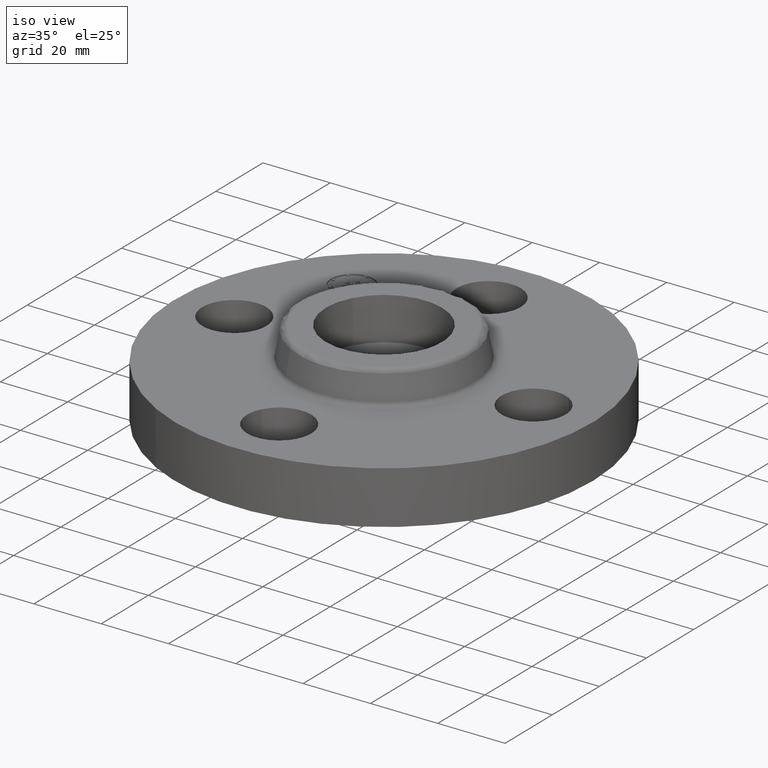
[diagram: clean part render]
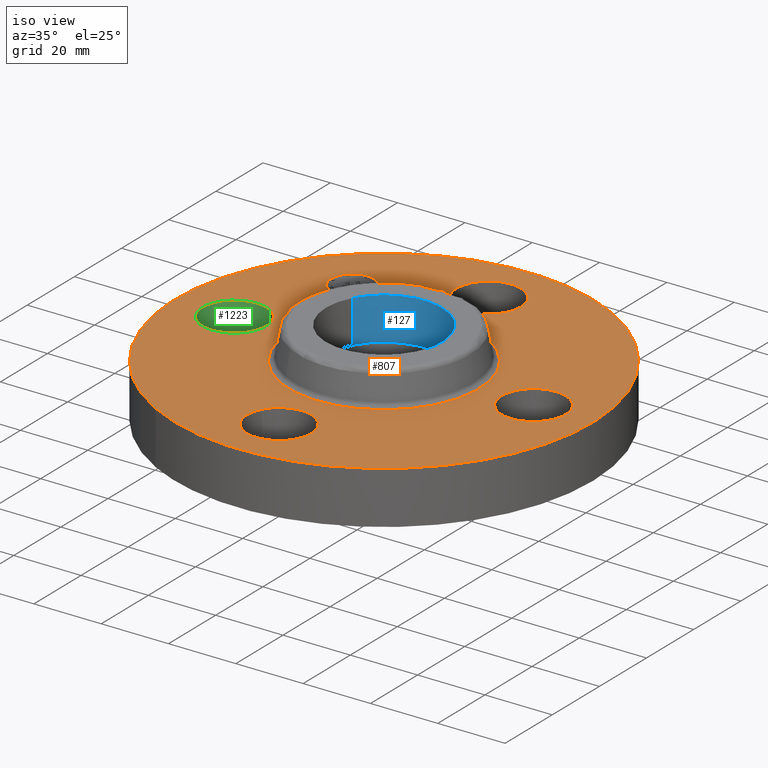
[diagram: same view with three faces highlighted in distinct colors, each labeled with its STEP entity id]
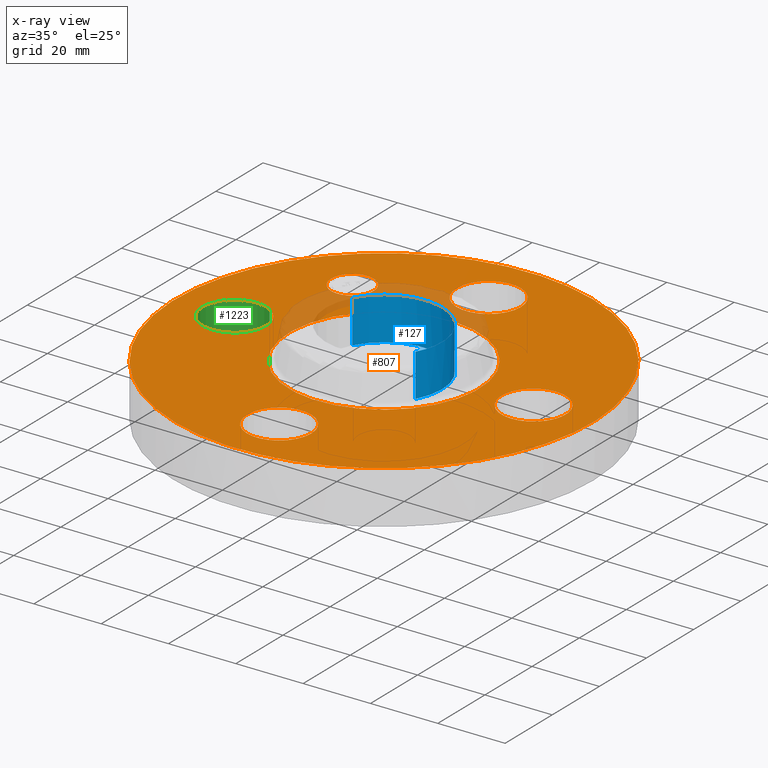
[diagram: x-ray of the same camera — body ghosted, the three highlighted faces saturated]
A machine part, iso view with three faces highlighted in distinct colors.
The next image is the same camera in x-ray (body ghosted, the three faces saturated) — at least one of them is partly hidden behind the body in this view.
Their STEP definitions:

[orange] entity #807 — the highlighted planar face has unit normal (0, 0, -1).
#558=AXIS2_PLACEMENT_3D('Circle Axis2P3D',#556,#557,$) ;
#596=AXIS2_PLACEMENT_3D('Circle Axis2P3D',#594,#595,$) ;
#693=AXIS2_PLACEMENT_3D('Plane Axis2P3D',#690,#691,#692) ;
#697=AXIS2_PLACEMENT_3D('Circle Axis2P3D',#695,#696,$) ;
#706=AXIS2_PLACEMENT_3D('Circle Axis2P3D',#704,#705,$) ;
#715=AXIS2_PLACEMENT_3D('Circle Axis2P3D',#713,#714,$) ;
#724=AXIS2_PLACEMENT_3D('Circle Axis2P3D',#722,#723,$) ;
#737=AXIS2_PLACEMENT_3D('Circle Axis2P3D',#735,#736,$) ;
#746=AXIS2_PLACEMENT_3D('Circle Axis2P3D',#744,#745,$) ;
#755=AXIS2_PLACEMENT_3D('Circle Axis2P3D',#753,#754,$) ;
#764=AXIS2_PLACEMENT_3D('Circle Axis2P3D',#762,#763,$) ;
#773=AXIS2_PLACEMENT_3D('Circle Axis2P3D',#771,#772,$) ;
#782=AXIS2_PLACEMENT_3D('Circle Axis2P3D',#780,#781,$) ;
#791=AXIS2_PLACEMENT_3D('Circle Axis2P3D',#789,#790,$) ;
#800=AXIS2_PLACEMENT_3D('Circle Axis2P3D',#798,#799,$) ;
#556=CARTESIAN_POINT('Axis2P3D Location',(0.,0.,0.620000000003)) ;
#560=CARTESIAN_POINT('Vertex',(0.53232821848,0.974420267848,0.620000000003)) ;
#562=CARTESIAN_POINT('Vertex',(-0.532328218482,-0.974420267852,0.620000000003)) ;
#594=CARTESIAN_POINT('Axis2P3D Location',(0.,0.,0.620000000003)) ;
#690=CARTESIAN_POINT('Axis2P3D Location',(0.,2.44000000001,0.620000000002)) ;
#695=CARTESIAN_POINT('Axis2P3D Location',(8.39223703654E-016,1.82136720404E-011,0.620000000002)) ;
#699=CARTESIAN_POINT('Vertex',(1.1697983142,2.14130145102,0.619999999973)) ;
#701=CARTESIAN_POINT('Vertex',(-1.1697983142,-2.14130145102,0.619999999973)) ;
#704=CARTESIAN_POINT('Axis2P3D Location',(-8.39223703654E-016,1.82131125579E-011,0.620000000002)) ;
#713=CARTESIAN_POINT('Axis2P3D Location',(-1.74838271595E-017,1.74999999999,0.620000000002)) ;
#717=CARTESIAN_POINT('Vertex',(-0.32909346071,1.92978457699,0.619999999987)) ;
#719=CARTESIAN_POINT('Vertex',(0.329093460698,1.57021542302,0.620000000002)) ;
#722=CARTESIAN_POINT('Axis2P3D Location',(1.74838271595E-017,1.74999999999,0.620000000002)) ;
#735=CARTESIAN_POINT('Axis2P3D Location',(1.74999999999,2.52125179876E-011,0.620000000002)) ;
#739=CARTESIAN_POINT('Vertex',(1.570215423,-0.329093460679,0.620000000002)) ;
#741=CARTESIAN_POINT('Vertex',(1.92978457699,0.32909346071,0.619999999987)) ;
#744=CARTESIAN_POINT('Axis2P3D Location',(1.75000000002,1.12142666107E-011,0.620000000002)) ;
#753=CARTESIAN_POINT('Axis2P3D Location',(-1.74838271595E-017,-1.75000000003,0.620000000002)) ;
#757=CARTESIAN_POINT('Vertex',(-0.329093460698,-1.57021542305,0.620000000002)) ;
#759=CARTESIAN_POINT('Vertex',(0.32909346071,-1.92978457699,0.619999999987)) ;
#762=CARTESIAN_POINT('Axis2P3D Location',(1.74838271595E-017,-1.75000000003,0.620000000002)) ;
#771=CARTESIAN_POINT('Axis2P3D Location',(-1.74999999999,1.12142666107E-011,0.620000000002)) ;
#775=CARTESIAN_POINT('Vertex',(-1.570215423,0.329093460716,0.620000000002)) ;
#777=CARTESIAN_POINT('Vertex',(-1.92978457699,-0.32909346071,0.619999999987)) ;
#780=CARTESIAN_POINT('Axis2P3D Location',(-1.75000000002,2.52125179876E-011,0.620000000002)) ;
#789=CARTESIAN_POINT('Axis2P3D Location',(-1.23743686708,1.23743686702,0.620000000002)) ;
#793=CARTESIAN_POINT('Vertex',(-1.41244579547,1.06242793871,0.620000000002)) ;
#795=CARTESIAN_POINT('Vertex',(-1.06242793876,1.41244579541,0.620000000002)) ;
#798=CARTESIAN_POINT('Axis2P3D Location',(-1.23743686711,1.23743686706,0.620000000002)) ;
#557=DIRECTION('Axis2P3D Direction',(-0.,0.,-0.0393700787402)) ;
#595=DIRECTION('Axis2P3D Direction',(-0.,0.,-0.0393700787402)) ;
#691=DIRECTION('Axis2P3D Direction',(0.,0.,-0.0393700787402)) ;
#692=DIRECTION('Axis2P3D XDirection',(0.0393700787402,0.,0.)) ;
#696=DIRECTION('Axis2P3D Direction',(0.,0.,-0.0393700787402)) ;
#705=DIRECTION('Axis2P3D Direction',(0.,0.,-0.0393700787402)) ;
#714=DIRECTION('Axis2P3D Direction',(0.,0.,-0.0393700787402)) ;
#723=DIRECTION('Axis2P3D Direction',(0.,0.,-0.0393700787402)) ;
#736=DIRECTION('Axis2P3D Direction',(0.,0.,-0.0393700787402)) ;
#745=DIRECTION('Axis2P3D Direction',(0.,0.,-0.0393700787402)) ;
#754=DIRECTION('Axis2P3D Direction',(0.,0.,-0.0393700787402)) ;
#763=DIRECTION('Axis2P3D Direction',(0.,0.,-0.0393700787402)) ;
#772=DIRECTION('Axis2P3D Direction',(0.,0.,-0.0393700787402)) ;
#781=DIRECTION('Axis2P3D Direction',(0.,0.,-0.0393700787402)) ;
#790=DIRECTION('Axis2P3D Direction',(0.,0.,-0.0393700787402)) ;
#799=DIRECTION('Axis2P3D Direction',(0.,0.,-0.0393700787402)) ;
#710=ORIENTED_EDGE('',*,*,#703,.F.) ;
#711=ORIENTED_EDGE('',*,*,#708,.F.) ;
#728=ORIENTED_EDGE('',*,*,#721,.T.) ;
#729=ORIENTED_EDGE('',*,*,#726,.T.) ;
#732=ORIENTED_EDGE('',*,*,#598,.T.) ;
#733=ORIENTED_EDGE('',*,*,#564,.T.) ;
#750=ORIENTED_EDGE('',*,*,#743,.T.) ;
#751=ORIENTED_EDGE('',*,*,#748,.T.) ;
#768=ORIENTED_EDGE('',*,*,#761,.T.) ;
#769=ORIENTED_EDGE('',*,*,#766,.T.) ;
#786=ORIENTED_EDGE('',*,*,#779,.T.) ;
#787=ORIENTED_EDGE('',*,*,#784,.T.) ;
#804=ORIENTED_EDGE('',*,*,#797,.T.) ;
#805=ORIENTED_EDGE('',*,*,#802,.T.) ;
#730=FACE_BOUND('',#727,.T.) ;
#734=FACE_BOUND('',#731,.T.) ;
#752=FACE_BOUND('',#749,.T.) ;
#770=FACE_BOUND('',#767,.T.) ;
#788=FACE_BOUND('',#785,.T.) ;
#806=FACE_BOUND('',#803,.T.) ;
#807=ADVANCED_FACE('PartBody',(#712,#730,#734,#752,#770,#788,#806),#694,.F.) ;
#559=CIRCLE('generated circle',#558,1.11034597788) ;
#597=CIRCLE('generated circle',#596,1.11034597788) ;
#698=CIRCLE('generated circle',#697,2.44) ;
#707=CIRCLE('generated circle',#706,2.44) ;
#716=CIRCLE('generated circle',#715,0.374999999988) ;
#725=CIRCLE('generated circle',#724,0.374999999988) ;
#738=CIRCLE('generated circle',#737,0.375000000006) ;
#747=CIRCLE('generated circle',#746,0.375000000006) ;
#756=CIRCLE('generated circle',#755,0.374999999988) ;
#765=CIRCLE('generated circle',#764,0.374999999988) ;
#774=CIRCLE('generated circle',#773,0.375000000006) ;
#783=CIRCLE('generated circle',#782,0.375000000006) ;
#792=CIRCLE('generated circle',#791,0.247500000012) ;
#801=CIRCLE('generated circle',#800,0.247500000012) ;
#564=EDGE_CURVE('',#561,#563,#559,.T.) ;
#598=EDGE_CURVE('',#563,#561,#597,.T.) ;
#703=EDGE_CURVE('',#700,#702,#698,.T.) ;
#708=EDGE_CURVE('',#702,#700,#707,.T.) ;
#721=EDGE_CURVE('',#718,#720,#716,.T.) ;
#726=EDGE_CURVE('',#720,#718,#725,.T.) ;
#743=EDGE_CURVE('',#740,#742,#738,.T.) ;
#748=EDGE_CURVE('',#742,#740,#747,.T.) ;
#761=EDGE_CURVE('',#758,#760,#756,.T.) ;
#766=EDGE_CURVE('',#760,#758,#765,.T.) ;
#779=EDGE_CURVE('',#776,#778,#774,.T.) ;
#784=EDGE_CURVE('',#778,#776,#783,.T.) ;
#797=EDGE_CURVE('',#794,#796,#792,.T.) ;
#802=EDGE_CURVE('',#796,#794,#801,.T.) ;
#709=EDGE_LOOP('',(#710,#711)) ;
#727=EDGE_LOOP('',(#728,#729)) ;
#731=EDGE_LOOP('',(#732,#733)) ;
#749=EDGE_LOOP('',(#750,#751)) ;
#767=EDGE_LOOP('',(#768,#769)) ;
#785=EDGE_LOOP('',(#786,#787)) ;
#803=EDGE_LOOP('',(#804,#805)) ;
#712=FACE_OUTER_BOUND('',#709,.T.) ;
#694=PLANE('',#693) ;
#561=VERTEX_POINT('',#560) ;
#563=VERTEX_POINT('',#562) ;
#700=VERTEX_POINT('',#699) ;
#702=VERTEX_POINT('',#701) ;
#718=VERTEX_POINT('',#717) ;
#720=VERTEX_POINT('',#719) ;
#740=VERTEX_POINT('',#739) ;
#742=VERTEX_POINT('',#741) ;
#758=VERTEX_POINT('',#757) ;
#760=VERTEX_POINT('',#759) ;
#776=VERTEX_POINT('',#775) ;
#778=VERTEX_POINT('',#777) ;
#794=VERTEX_POINT('',#793) ;
#796=VERTEX_POINT('',#795) ;

[blue] entity #127 — the highlighted cylindrical surface (partial cylindrical patch) has radius 17.272 mm, axis along (0, 0, -1).
#42=AXIS2_PLACEMENT_3D('Circle Axis2P3D',#40,#41,$) ;
#88=AXIS2_PLACEMENT_3D('Cylinder Axis2P3D',#85,#86,#87) ;
#40=CARTESIAN_POINT('Axis2P3D Location',(1.74838271595E-016,-4.19611851826E-016,0.500000000002)) ;
#44=CARTESIAN_POINT('Vertex',(-0.596756142102,0.326009366265,0.500000000002)) ;
#46=CARTESIAN_POINT('Vertex',(0.596756142102,-0.326009366265,0.500000000002)) ;
#85=CARTESIAN_POINT('Axis2P3D Location',(1.04902962957E-016,-2.09805925913E-016,0.99606299213)) ;
#91=CARTESIAN_POINT('Control Point',(-0.596756142088,0.326009366253,1.)) ;
#92=CARTESIAN_POINT('Control Point',(-0.545546710587,0.419747601851,0.999999999999)) ;
#93=CARTESIAN_POINT('Control Point',(-0.475931819566,0.503430889087,0.999999999999)) ;
#94=CARTESIAN_POINT('Control Point',(-0.390529134758,0.572224389438,0.999999999998)) ;
#95=CARTESIAN_POINT('Control Point',(-0.197351584244,0.672618295801,0.999999999997)) ;
#96=CARTESIAN_POINT('Control Point',(0.0194447785343,0.69251401253,0.999999999996)) ;
#97=CARTESIAN_POINT('Control Point',(0.128477946693,0.68076954557,0.999999999996)) ;
#98=CARTESIAN_POINT('Control Point',(0.336064314615,0.615161601608,0.999999999995)) ;
#99=CARTESIAN_POINT('Control Point',(0.503430889087,0.475931819566,0.999999999994)) ;
#100=CARTESIAN_POINT('Control Point',(0.572224389438,0.390529134758,0.999999999993)) ;
#101=CARTESIAN_POINT('Control Point',(0.672618295801,0.197351584244,0.999999999992)) ;
#102=CARTESIAN_POINT('Control Point',(0.69251401253,-0.0194447785341,0.999999999991)) ;
#103=CARTESIAN_POINT('Control Point',(0.68076954557,-0.128477946693,0.99999999999)) ;
#104=CARTESIAN_POINT('Control Point',(0.647965573589,-0.232271130654,0.99999999999)) ;
#105=CARTESIAN_POINT('Control Point',(0.596756142088,-0.326009366252,0.999999999989)) ;
#106=CARTESIAN_POINT('Vertex',(-0.596756142102,0.326009366287,1.)) ;
#108=CARTESIAN_POINT('Vertex',(0.596756142102,-0.326009366244,1.)) ;
#111=CARTESIAN_POINT('Line Origine',(-0.596756142088,0.326009366253,0.750000000001)) ;
#116=CARTESIAN_POINT('Line Origine',(0.596756142088,-0.326009366253,0.750000000001)) ;
#41=DIRECTION('Axis2P3D Direction',(0.,0.,-0.0393700787402)) ;
#86=DIRECTION('Axis2P3D Direction',(0.,0.,-0.0393700787402)) ;
#87=DIRECTION('Axis2P3D XDirection',(-0.0345504945626,0.0188750212049,-0.)) ;
#112=DIRECTION('Vector Direction',(0.,0.,-0.0393700787402)) ;
#117=DIRECTION('Vector Direction',(0.,0.,-0.0393700787402)) ;
#113=VECTOR('Line Direction',#112,0.0393700787402) ;
#118=VECTOR('Line Direction',#117,0.0393700787402) ;
#122=ORIENTED_EDGE('',*,*,#110,.F.) ;
#123=ORIENTED_EDGE('',*,*,#115,.F.) ;
#124=ORIENTED_EDGE('',*,*,#48,.T.) ;
#125=ORIENTED_EDGE('',*,*,#120,.T.) ;
#127=ADVANCED_FACE('PartBody',(#126),#89,.F.) ;
#90=B_SPLINE_CURVE_WITH_KNOTS('',5,(#91,#92,#93,#94,#95,#96,#97,#98,#99,#100,#101,#102,#103,#104,#105),.UNSPECIFIED.,.F.,.U.,(6,3,3,3,6),(-27.1307941565,-13.5653970783,-1.7763568394E-015,13.5653970783,27.1307941565),.UNSPECIFIED.) ;
#43=CIRCLE('generated circle',#42,0.680000000022) ;
#89=CYLINDRICAL_SURFACE('generated cylinder',#88,0.680000000003) ;
#48=EDGE_CURVE('',#45,#47,#43,.T.) ;
#110=EDGE_CURVE('',#107,#109,#90,.T.) ;
#115=EDGE_CURVE('',#45,#107,#114,.F.) ;
#120=EDGE_CURVE('',#47,#109,#119,.F.) ;
#121=EDGE_LOOP('',(#122,#123,#124,#125)) ;
#126=FACE_OUTER_BOUND('',#121,.T.) ;
#114=LINE('Line',#111,#113) ;
#119=LINE('Line',#116,#118) ;
#45=VERTEX_POINT('',#44) ;
#47=VERTEX_POINT('',#46) ;
#107=VERTEX_POINT('',#106) ;
#109=VERTEX_POINT('',#108) ;

[green] entity #1223 — the highlighted cylindrical surface (partial cylindrical patch) has radius 9.525 mm, axis along (0, 0, -1).
#782=AXIS2_PLACEMENT_3D('Circle Axis2P3D',#780,#781,$) ;
#1210=AXIS2_PLACEMENT_3D('Cylinder Axis2P3D',#1207,#1208,#1209) ;
#1214=AXIS2_PLACEMENT_3D('Circle Axis2P3D',#1212,#1213,$) ;
#775=CARTESIAN_POINT('Vertex',(-1.570215423,0.329093460716,0.620000000002)) ;
#777=CARTESIAN_POINT('Vertex',(-1.92978457699,-0.32909346071,0.619999999987)) ;
#780=CARTESIAN_POINT('Axis2P3D Location',(-1.75000000002,2.52125179876E-011,0.620000000002)) ;
#1166=CARTESIAN_POINT('Line Origine',(-1.57021542303,0.32909346071,0.309999999994)) ;
#1170=CARTESIAN_POINT('Vertex',(-1.570215423,0.329093460678,0.)) ;
#1184=CARTESIAN_POINT('Vertex',(-1.92978457702,-0.329093460717,0.)) ;
#1187=CARTESIAN_POINT('Line Origine',(-1.92978457699,-0.32909346071,0.309999999994)) ;
#1207=CARTESIAN_POINT('Axis2P3D Location',(-1.75000000001,-3.21469784777E-016,0.616062992128)) ;
#1212=CARTESIAN_POINT('Axis2P3D Location',(-1.75000000001,-3.21469784777E-016,0.)) ;
#781=DIRECTION('Axis2P3D Direction',(0.,0.,-0.0393700787402)) ;
#1167=DIRECTION('Vector Direction',(0.,0.,-0.0393700787402)) ;
#1188=DIRECTION('Vector Direction',(0.,0.,-0.0393700787402)) ;
#1208=DIRECTION('Axis2P3D Direction',(0.,0.,-0.0393700787402)) ;
#1209=DIRECTION('Axis2P3D XDirection',(-0.0188750212049,-0.0345504945626,0.)) ;
#1213=DIRECTION('Axis2P3D Direction',(0.,0.,-0.0393700787402)) ;
#1168=VECTOR('Line Direction',#1167,0.0393700787402) ;
#1189=VECTOR('Line Direction',#1188,0.0393700787402) ;
#1218=ORIENTED_EDGE('',*,*,#1191,.F.) ;
#1219=ORIENTED_EDGE('',*,*,#1216,.T.) ;
#1220=ORIENTED_EDGE('',*,*,#1172,.T.) ;
#1221=ORIENTED_EDGE('',*,*,#784,.F.) ;
#1223=ADVANCED_FACE('PartBody',(#1222),#1211,.F.) ;
#783=CIRCLE('generated circle',#782,0.375000000006) ;
#1215=CIRCLE('generated circle',#1214,0.375000000001) ;
#1211=CYLINDRICAL_SURFACE('generated cylinder',#1210,0.375000000001) ;
#784=EDGE_CURVE('',#778,#776,#783,.T.) ;
#1172=EDGE_CURVE('',#1171,#776,#1169,.F.) ;
#1191=EDGE_CURVE('',#1185,#778,#1190,.F.) ;
#1216=EDGE_CURVE('',#1185,#1171,#1215,.T.) ;
#1217=EDGE_LOOP('',(#1218,#1219,#1220,#1221)) ;
#1222=FACE_OUTER_BOUND('',#1217,.T.) ;
#1169=LINE('Line',#1166,#1168) ;
#1190=LINE('Line',#1187,#1189) ;
#776=VERTEX_POINT('',#775) ;
#778=VERTEX_POINT('',#777) ;
#1171=VERTEX_POINT('',#1170) ;
#1185=VERTEX_POINT('',#1184) ;